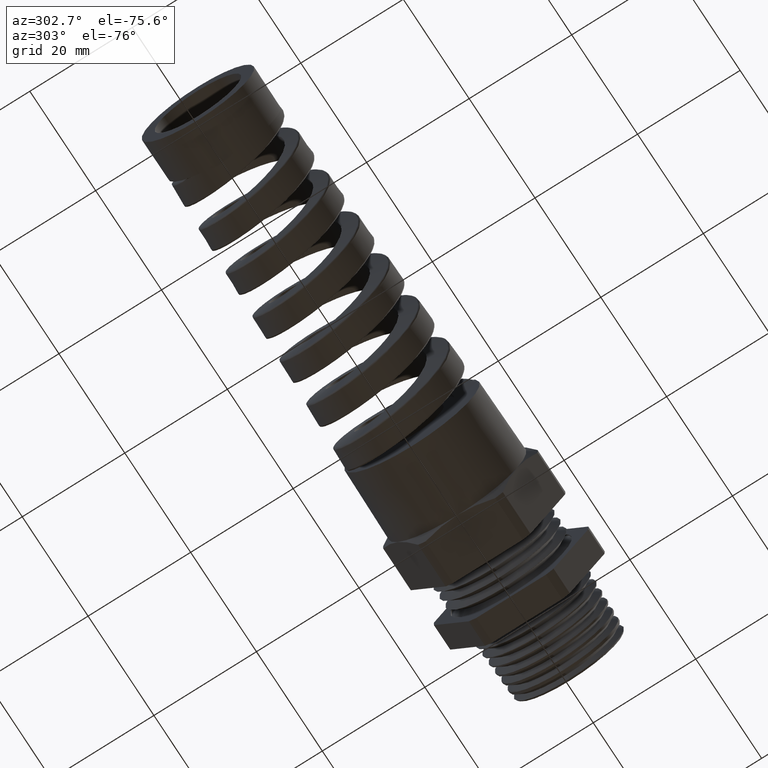
[diagram: clean part render]
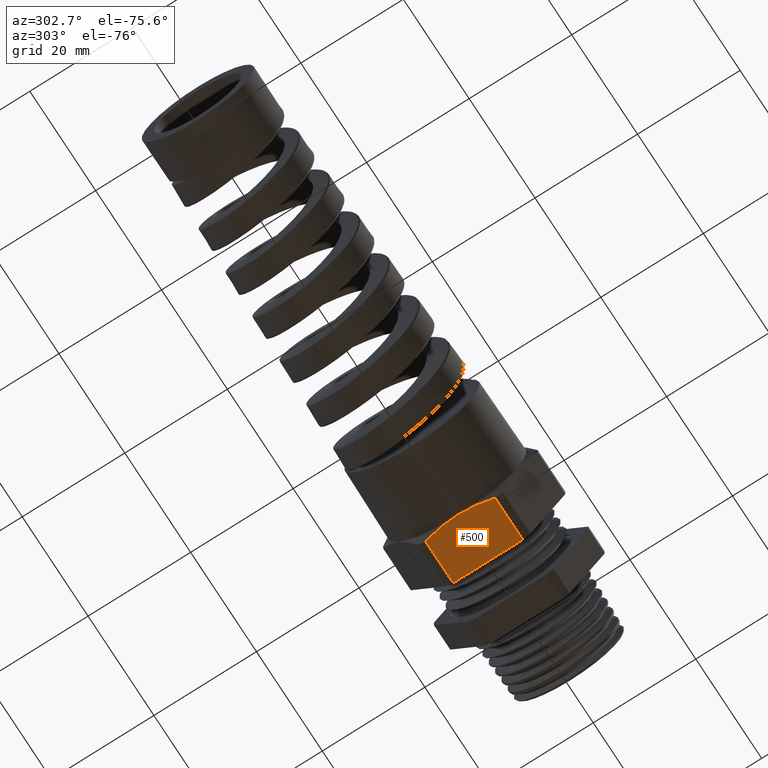
[diagram: same view with one face highlighted and labeled with its STEP entity id]
A machine part, auxiliary view. The second image highlights one B-rep face of the part: STEP entity #500.
In plain terms, the highlighted planar face has unit normal (0, 0, -1).
Its self-contained STEP definition (entity closure, byte-faithful):
#356 = VERTEX_POINT ( 'NONE', #1861 ) ;
#370 = VERTEX_POINT ( 'NONE', #2205 ) ;
#373 = EDGE_CURVE ( 'NONE', #370, #374, #2203, .T. ) ;
#374 = VERTEX_POINT ( 'NONE', #2259 ) ;
#376 = EDGE_CURVE ( 'NONE', #417, #374, #2258, .T. ) ;
#417 = VERTEX_POINT ( 'NONE', #2305 ) ;
#419 = EDGE_CURVE ( 'NONE', #356, #417, #2304, .T. ) ;
#500 = ADVANCED_FACE ( 'NONE', ( #2504 ), #2503, .T. ) ;
#501 = EDGE_LOOP ( 'NONE', ( #502, #503, #505, #507, #508 ) ) ;
#502 = ORIENTED_EDGE ( 'NONE', *, *, #373, .F. ) ;
#503 = ORIENTED_EDGE ( 'NONE', *, *, #504, .T. ) ;
#504 = EDGE_CURVE ( 'NONE', #370, #1540, #2498, .T. ) ;
#505 = ORIENTED_EDGE ( 'NONE', *, *, #506, .T. ) ;
#506 = EDGE_CURVE ( 'NONE', #1540, #356, #2551, .T. ) ;
#507 = ORIENTED_EDGE ( 'NONE', *, *, #419, .T. ) ;
#508 = ORIENTED_EDGE ( 'NONE', *, *, #376, .T. ) ;
#1540 = VERTEX_POINT ( 'NONE', #12775 ) ;
#1861 = CARTESIAN_POINT ( 'NONE',  ( -0.8007805228795398200, 0.2673218285138724300, -0.5299999999999999200 ) ) ;
#2202 = CARTESIAN_POINT ( 'NONE',  ( -2.533243884661831900, -0.2673218285138723200, -0.5299999999999999200 ) ) ;
#2203 = LINE ( 'NONE', #2202, #2261 ) ;
#2205 = CARTESIAN_POINT ( 'NONE',  ( -0.8007805228795398200, -0.2673218285138723700, -0.5300000000000000300 ) ) ;
#2255 = DIRECTION ( 'NONE',  ( 0.0000000000000000000, -1.000000000000000000, 0.0000000000000000000 ) ) ;
#2256 = VECTOR ( 'NONE', #2255, 39.37007874015748100 ) ;
#2257 = CARTESIAN_POINT ( 'NONE',  ( -0.4708333333333333300, 0.4664000000000000400, -0.5299999999999999200 ) ) ;
#2258 = LINE ( 'NONE', #2257, #2256 ) ;
#2259 = CARTESIAN_POINT ( 'NONE',  ( -0.4708333333333333300, -0.2673218285138723200, -0.5299999999999999200 ) ) ;
#2260 = DIRECTION ( 'NONE',  ( 1.000000000000000000, 0.0000000000000000000, 0.0000000000000000000 ) ) ;
#2261 = VECTOR ( 'NONE', #2260, 39.37007874015748100 ) ;
#2301 = DIRECTION ( 'NONE',  ( 1.000000000000000000, 0.0000000000000000000, 0.0000000000000000000 ) ) ;
#2302 = VECTOR ( 'NONE', #2301, 39.37007874015748100 ) ;
#2303 = CARTESIAN_POINT ( 'NONE',  ( -2.533243884661831900, 0.2673218285138724300, -0.5299999999999999200 ) ) ;
#2304 = LINE ( 'NONE', #2303, #2302 ) ;
#2305 = CARTESIAN_POINT ( 'NONE',  ( -0.4708333333333333300, 0.2673218285138724300, -0.5299999999999999200 ) ) ;
#2498 = B_SPLINE_CURVE_WITH_KNOTS ( 'NONE', 3,
 ( #2560, #2559, #2558, #2557, #2555, #2554, #2553, #2552 ),
 .UNSPECIFIED., .F., .F.,
 ( 4, 2, 2, 4 ),
 ( 0.01432268175415860900, 0.01603362658502655000, 0.01774457141589449300, 0.02116646107763037900 ),
 .UNSPECIFIED. ) ;
#2499 = DIRECTION ( 'NONE',  ( -1.000000000000000000, 0.0000000000000000000, 0.0000000000000000000 ) ) ;
#2500 = DIRECTION ( 'NONE',  ( 0.0000000000000000000, 0.0000000000000000000, -1.000000000000000000 ) ) ;
#2501 = CARTESIAN_POINT ( 'NONE',  ( -2.533243884661831900, -0.2673218285138724300, -0.5299999999999999200 ) ) ;
#2502 = AXIS2_PLACEMENT_3D ( 'NONE', #2501, #2500, #2499 ) ;
#2503 = PLANE ( 'NONE',  #2502 ) ;
#2504 = FACE_OUTER_BOUND ( 'NONE', #501, .T. ) ;
#2541 = CARTESIAN_POINT ( 'NONE',  ( -0.8007805228795398200, 0.2673218285138724300, -0.5299999999999999200 ) ) ;
#2543 = CARTESIAN_POINT ( 'NONE',  ( -0.8120576945526087900, 0.2239487460126229300, -0.5300000000000001400 ) ) ;
#2544 = CARTESIAN_POINT ( 'NONE',  ( -0.8213051833091242800, 0.1800017858002749500, -0.5300000000000000300 ) ) ;
#2545 = CARTESIAN_POINT ( 'NONE',  ( -0.8308887136721121400, 0.1128690294926517200, -0.5299999999999999200 ) ) ;
#2546 = CARTESIAN_POINT ( 'NONE',  ( -0.8333698439661925100, 0.09020032554817357400, -0.5300000000000000300 ) ) ;
#2547 = CARTESIAN_POINT ( 'NONE',  ( -0.8366704751326135000, 0.04502350460591600400, -0.5299999999999999200 ) ) ;
#2548 = CARTESIAN_POINT ( 'NONE',  ( -0.8374999999999996900, 0.02248601894749249400, -0.5299999999999998000 ) ) ;
#2549 = CARTESIAN_POINT ( 'NONE',  ( -0.8375000000000000200, 0.0000000000000000000, -0.5299999999999999200 ) ) ;
#2551 = B_SPLINE_CURVE_WITH_KNOTS ( 'NONE', 3,
 ( #2549, #2548, #2547, #2546, #2545, #2544, #2543, #2541 ),
 .UNSPECIFIED., .F., .F.,
 ( 4, 2, 2, 4 ),
 ( 0.02116646107763037900, 0.02287667928950054600, 0.02458689750137070900, 0.02800733392511103900 ),
 .UNSPECIFIED. ) ;
#2552 = CARTESIAN_POINT ( 'NONE',  ( -0.8375000000000000200, 0.0000000000000000000, -0.5299999999999999200 ) ) ;
#2553 = CARTESIAN_POINT ( 'NONE',  ( -0.8374999999999996900, -0.04499114512754565800, -0.5299999999999999200 ) ) ;
#2554 = CARTESIAN_POINT ( 'NONE',  ( -0.8341465868220293600, -0.08977423242168819400, -0.5299999999999999200 ) ) ;
#2555 = CARTESIAN_POINT ( 'NONE',  ( -0.8246545637602136200, -0.1566720308095854400, -0.5299999999999999200 ) ) ;
#2557 = CARTESIAN_POINT ( 'NONE',  ( -0.8207557576897001100, -0.1789257074002587600, -0.5299999999999999200 ) ) ;
#2558 = CARTESIAN_POINT ( 'NONE',  ( -0.8116548691931352300, -0.2233522006217770200, -0.5300000000000000300 ) ) ;
#2559 = CARTESIAN_POINT ( 'NONE',  ( -0.8064647693670961000, -0.2454596720255570700, -0.5300000000000000300 ) ) ;
#2560 = CARTESIAN_POINT ( 'NONE',  ( -0.8007805228795398200, -0.2673218285138723700, -0.5300000000000000300 ) ) ;
#12775 = CARTESIAN_POINT ( 'NONE',  ( -0.8375000000000000200, 0.0000000000000000000, -0.5299999999999999200 ) ) ;